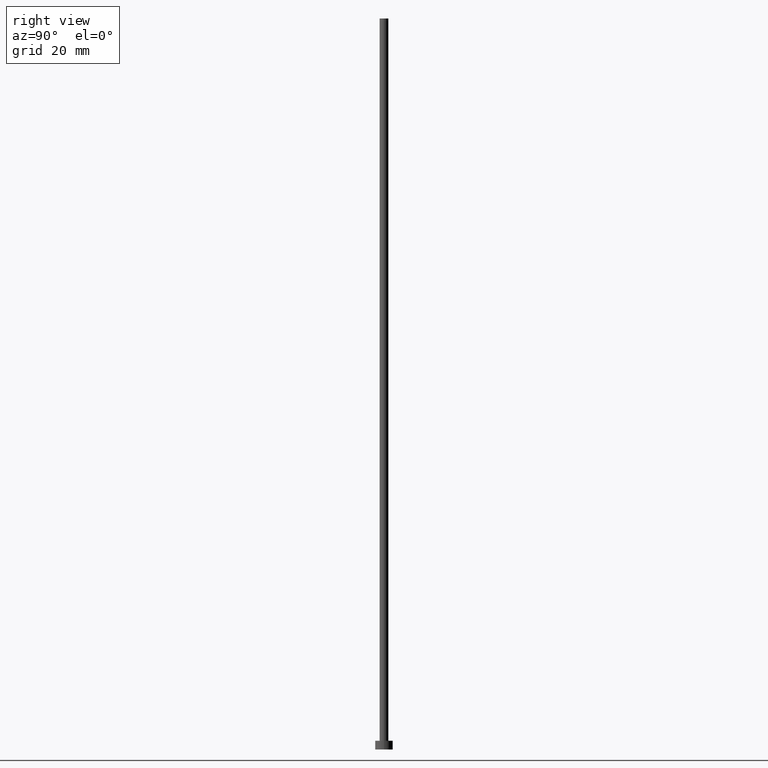
[diagram: clean part render]
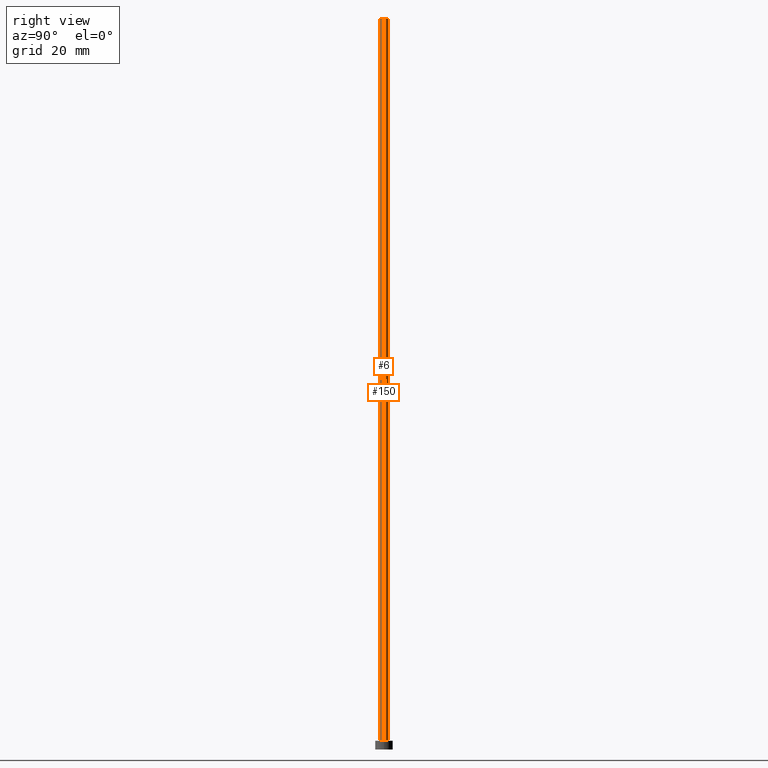
[diagram: same view with one multi-face feature highlighted, each face labeled with its STEP entity id]
A machine part, right view. The highlighted faces form ONE feature: a constant-radius fillet chain: 2 tangent blend faces with common blend radius 1.5 mm. The faces share edges in the B-rep.
Their STEP definitions:
[1] entity #150 (Cylinder):
#20 = CARTESIAN_POINT ( 'NONE',  ( 0.000000000000000000, 0.000000000000000000, 250.0000000000000000 ) ) ;
#24 = CARTESIAN_POINT ( 'NONE',  ( 1.500000000000000222, 1.836970198721030181E-16, 250.0000000000000000 ) ) ;
#29 = EDGE_LOOP ( 'NONE', ( #166, #200, #126, #69 ) ) ;
#30 = AXIS2_PLACEMENT_3D ( 'NONE', #37, #193, #170 ) ;
#37 = CARTESIAN_POINT ( 'NONE',  ( 0.000000000000000000, 0.000000000000000000, 3.000000000000000000 ) ) ;
#40 = CARTESIAN_POINT ( 'NONE',  ( 1.500000000000000222, 1.836970198721030181E-16, 250.0000000000000000 ) ) ;
#42 = CIRCLE ( 'NONE', #30, 1.500000000000000222 ) ;
#45 = LINE ( 'NONE', #24, #243 ) ;
#53 = VERTEX_POINT ( 'NONE', #40 ) ;
#69 = ORIENTED_EDGE ( 'NONE', *, *, #107, .F. ) ;
#73 = VERTEX_POINT ( 'NONE', #117 ) ;
#76 = CARTESIAN_POINT ( 'NONE',  ( -1.500000000000000222, 0.000000000000000000, 3.000000000000000000 ) ) ;
#77 = DIRECTION ( 'NONE',  ( -0.000000000000000000, -0.000000000000000000, -1.000000000000000000 ) ) ;
#93 = CARTESIAN_POINT ( 'NONE',  ( -1.500000000000000222, 0.000000000000000000, 250.0000000000000000 ) ) ;
#97 = DIRECTION ( 'NONE',  ( -0.000000000000000000, -0.000000000000000000, -1.000000000000000000 ) ) ;
#105 = AXIS2_PLACEMENT_3D ( 'NONE', #20, #97, #168 ) ;
#107 = EDGE_CURVE ( 'NONE', #163, #202, #248, .T. ) ;
#117 = CARTESIAN_POINT ( 'NONE',  ( 1.500000000000000222, 1.836970198721030181E-16, 3.000000000000000000 ) ) ;
#126 = ORIENTED_EDGE ( 'NONE', *, *, #156, .T. ) ;
#132 = DIRECTION ( 'NONE',  ( 1.000000000000000000, 0.000000000000000000, 0.000000000000000000 ) ) ;
#133 = VECTOR ( 'NONE', #77, 1000.000000000000000 ) ;
#150 = ADVANCED_FACE ( 'NONE', ( #189 ), #208, .T. ) ;
#156 = EDGE_CURVE ( 'NONE', #73, #202, #42, .T. ) ;
#163 = VERTEX_POINT ( 'NONE', #93 ) ;
#165 = CIRCLE ( 'NONE', #178, 1.500000000000000222 ) ;
#166 = ORIENTED_EDGE ( 'NONE', *, *, #198, .F. ) ;
#168 = DIRECTION ( 'NONE',  ( -1.000000000000000000, 0.000000000000000000, 0.000000000000000000 ) ) ;
#170 = DIRECTION ( 'NONE',  ( 1.000000000000000000, 0.000000000000000000, 0.000000000000000000 ) ) ;
#178 = AXIS2_PLACEMENT_3D ( 'NONE', #228, #247, #132 ) ;
#189 = FACE_OUTER_BOUND ( 'NONE', #29, .T. ) ;
#193 = DIRECTION ( 'NONE',  ( 0.000000000000000000, 0.000000000000000000, 1.000000000000000000 ) ) ;
#194 = CARTESIAN_POINT ( 'NONE',  ( -1.500000000000000222, 0.000000000000000000, 250.0000000000000000 ) ) ;
#198 = EDGE_CURVE ( 'NONE', #53, #163, #165, .T. ) ;
#200 = ORIENTED_EDGE ( 'NONE', *, *, #236, .T. ) ;
#202 = VERTEX_POINT ( 'NONE', #76 ) ;
#208 = CYLINDRICAL_SURFACE ( 'NONE', #105, 1.500000000000000222 ) ;
#215 = DIRECTION ( 'NONE',  ( -0.000000000000000000, -0.000000000000000000, -1.000000000000000000 ) ) ;
#228 = CARTESIAN_POINT ( 'NONE',  ( 0.000000000000000000, 0.000000000000000000, 250.0000000000000000 ) ) ;
#236 = EDGE_CURVE ( 'NONE', #53, #73, #45, .T. ) ;
#243 = VECTOR ( 'NONE', #215, 1000.000000000000000 ) ;
#247 = DIRECTION ( 'NONE',  ( 0.000000000000000000, 0.000000000000000000, 1.000000000000000000 ) ) ;
#248 = LINE ( 'NONE', #194, #133 ) ;
[2] entity #6 (Cylinder):
#2 = CIRCLE ( 'NONE', #109, 1.500000000000000222 ) ;
#6 = ADVANCED_FACE ( 'NONE', ( #92 ), #167, .T. ) ;
#16 = CARTESIAN_POINT ( 'NONE',  ( 0.000000000000000000, 0.000000000000000000, 250.0000000000000000 ) ) ;
#22 = AXIS2_PLACEMENT_3D ( 'NONE', #129, #153, #169 ) ;
#23 = EDGE_CURVE ( 'NONE', #202, #73, #2, .T. ) ;
#24 = CARTESIAN_POINT ( 'NONE',  ( 1.500000000000000222, 1.836970198721030181E-16, 250.0000000000000000 ) ) ;
#26 = AXIS2_PLACEMENT_3D ( 'NONE', #16, #111, #188 ) ;
#40 = CARTESIAN_POINT ( 'NONE',  ( 1.500000000000000222, 1.836970198721030181E-16, 250.0000000000000000 ) ) ;
#45 = LINE ( 'NONE', #24, #243 ) ;
#53 = VERTEX_POINT ( 'NONE', #40 ) ;
#67 = CIRCLE ( 'NONE', #22, 1.500000000000000222 ) ;
#68 = ORIENTED_EDGE ( 'NONE', *, *, #83, .F. ) ;
#73 = VERTEX_POINT ( 'NONE', #117 ) ;
#76 = CARTESIAN_POINT ( 'NONE',  ( -1.500000000000000222, 0.000000000000000000, 3.000000000000000000 ) ) ;
#77 = DIRECTION ( 'NONE',  ( -0.000000000000000000, -0.000000000000000000, -1.000000000000000000 ) ) ;
#83 = EDGE_CURVE ( 'NONE', #163, #53, #67, .T. ) ;
#88 = EDGE_LOOP ( 'NONE', ( #239, #68, #183, #241 ) ) ;
#92 = FACE_OUTER_BOUND ( 'NONE', #88, .T. ) ;
#93 = CARTESIAN_POINT ( 'NONE',  ( -1.500000000000000222, 0.000000000000000000, 250.0000000000000000 ) ) ;
#107 = EDGE_CURVE ( 'NONE', #163, #202, #248, .T. ) ;
#109 = AXIS2_PLACEMENT_3D ( 'NONE', #246, #250, #128 ) ;
#111 = DIRECTION ( 'NONE',  ( -0.000000000000000000, -0.000000000000000000, -1.000000000000000000 ) ) ;
#117 = CARTESIAN_POINT ( 'NONE',  ( 1.500000000000000222, 1.836970198721030181E-16, 3.000000000000000000 ) ) ;
#128 = DIRECTION ( 'NONE',  ( 1.000000000000000000, 0.000000000000000000, 0.000000000000000000 ) ) ;
#129 = CARTESIAN_POINT ( 'NONE',  ( 0.000000000000000000, 0.000000000000000000, 250.0000000000000000 ) ) ;
#133 = VECTOR ( 'NONE', #77, 1000.000000000000000 ) ;
#153 = DIRECTION ( 'NONE',  ( 0.000000000000000000, 0.000000000000000000, 1.000000000000000000 ) ) ;
#163 = VERTEX_POINT ( 'NONE', #93 ) ;
#167 = CYLINDRICAL_SURFACE ( 'NONE', #26, 1.500000000000000222 ) ;
#169 = DIRECTION ( 'NONE',  ( 1.000000000000000000, 0.000000000000000000, 0.000000000000000000 ) ) ;
#183 = ORIENTED_EDGE ( 'NONE', *, *, #107, .T. ) ;
#188 = DIRECTION ( 'NONE',  ( -1.000000000000000000, 0.000000000000000000, 0.000000000000000000 ) ) ;
#194 = CARTESIAN_POINT ( 'NONE',  ( -1.500000000000000222, 0.000000000000000000, 250.0000000000000000 ) ) ;
#202 = VERTEX_POINT ( 'NONE', #76 ) ;
#215 = DIRECTION ( 'NONE',  ( -0.000000000000000000, -0.000000000000000000, -1.000000000000000000 ) ) ;
#236 = EDGE_CURVE ( 'NONE', #53, #73, #45, .T. ) ;
#239 = ORIENTED_EDGE ( 'NONE', *, *, #236, .F. ) ;
#241 = ORIENTED_EDGE ( 'NONE', *, *, #23, .T. ) ;
#243 = VECTOR ( 'NONE', #215, 1000.000000000000000 ) ;
#246 = CARTESIAN_POINT ( 'NONE',  ( 0.000000000000000000, 0.000000000000000000, 3.000000000000000000 ) ) ;
#248 = LINE ( 'NONE', #194, #133 ) ;
#250 = DIRECTION ( 'NONE',  ( 0.000000000000000000, 0.000000000000000000, 1.000000000000000000 ) ) ;